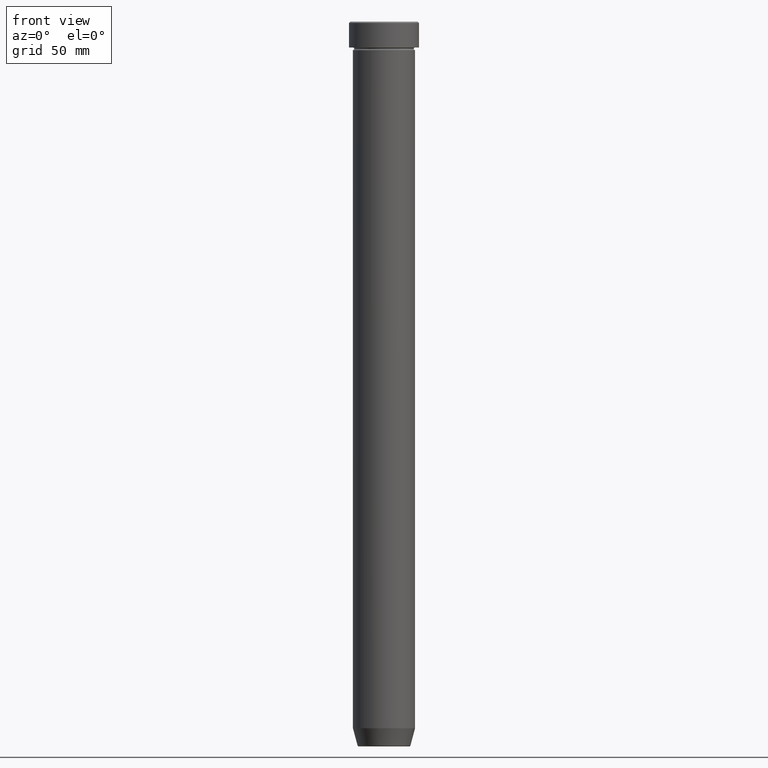
[diagram: clean part render]
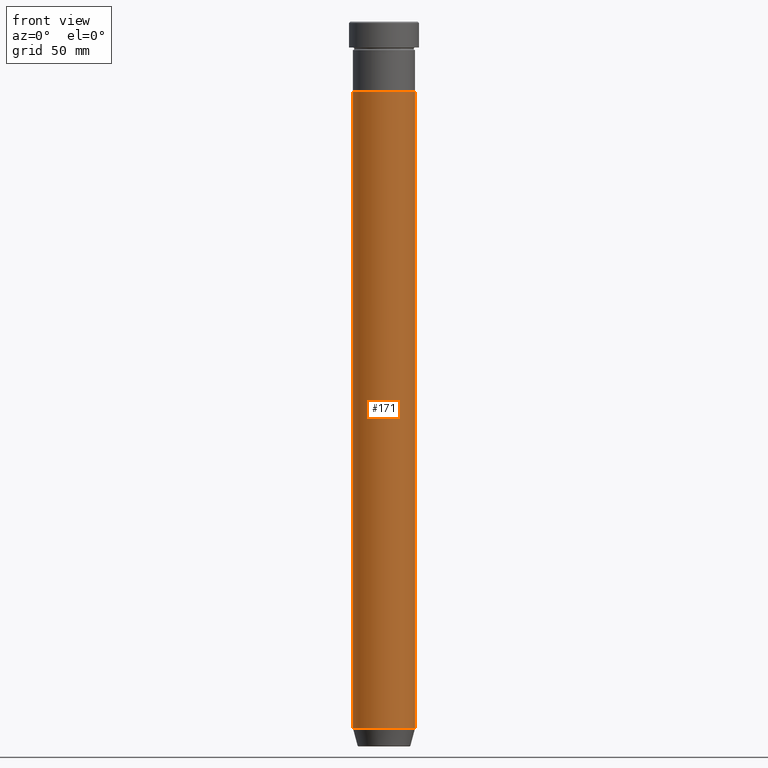
[diagram: same view with one face highlighted and labeled with its STEP entity id]
A machine part, front view. The second image highlights one B-rep face of the part: STEP entity #171.
In plain terms, the highlighted cylindrical surface (edge-blend (fillet) strip) has radius 12 mm, axis along (-0, -0, 1).
Its self-contained STEP definition (entity closure, byte-faithful):
#13 = VERTEX_POINT ( 'NONE', #552 ) ;
#24 = CARTESIAN_POINT ( 'NONE',  ( -12.00000000000000000, 1.469576158976823947E-15, -273.0000000000000000 ) ) ;
#63 = EDGE_LOOP ( 'NONE', ( #169, #351, #156, #326 ) ) ;
#90 = CARTESIAN_POINT ( 'NONE',  ( -12.00000000000000000, 1.469576158976823947E-15, 0.000000000000000000 ) ) ;
#92 = VECTOR ( 'NONE', #179, 1000.000000000000000 ) ;
#94 = CARTESIAN_POINT ( 'NONE',  ( 12.00000000000000000, 0.000000000000000000, 0.000000000000000000 ) ) ;
#96 = EDGE_CURVE ( 'NONE', #587, #419, #152, .T. ) ;
#134 = LINE ( 'NONE', #94, #92 ) ;
#152 = CIRCLE ( 'NONE', #550, 12.00000000000000000 ) ;
#156 = ORIENTED_EDGE ( 'NONE', *, *, #401, .T. ) ;
#164 = DIRECTION ( 'NONE',  ( 1.000000000000000000, 0.000000000000000000, 0.000000000000000000 ) ) ;
#169 = ORIENTED_EDGE ( 'NONE', *, *, #411, .F. ) ;
#171 = ADVANCED_FACE ( 'NONE', ( #287 ), #248, .T. ) ;
#176 = VERTEX_POINT ( 'NONE', #513 ) ;
#179 = DIRECTION ( 'NONE',  ( -0.000000000000000000, -0.000000000000000000, 1.000000000000000000 ) ) ;
#205 = CARTESIAN_POINT ( 'NONE',  ( 0.000000000000000000, 0.000000000000000000, -27.00000000000000000 ) ) ;
#212 = CIRCLE ( 'NONE', #477, 12.00000000000000000 ) ;
#217 = DIRECTION ( 'NONE',  ( -0.000000000000000000, -0.000000000000000000, 1.000000000000000000 ) ) ;
#237 = CARTESIAN_POINT ( 'NONE',  ( 0.000000000000000000, 0.000000000000000000, 0.000000000000000000 ) ) ;
#246 = VECTOR ( 'NONE', #217, 1000.000000000000000 ) ;
#248 = CYLINDRICAL_SURFACE ( 'NONE', #454, 12.00000000000000000 ) ;
#252 = DIRECTION ( 'NONE',  ( 1.000000000000000000, 0.000000000000000000, 0.000000000000000000 ) ) ;
#287 = FACE_OUTER_BOUND ( 'NONE', #63, .T. ) ;
#295 = DIRECTION ( 'NONE',  ( -0.000000000000000000, -0.000000000000000000, 1.000000000000000000 ) ) ;
#316 = LINE ( 'NONE', #90, #246 ) ;
#326 = ORIENTED_EDGE ( 'NONE', *, *, #599, .F. ) ;
#351 = ORIENTED_EDGE ( 'NONE', *, *, #96, .T. ) ;
#401 = EDGE_CURVE ( 'NONE', #419, #176, #134, .T. ) ;
#411 = EDGE_CURVE ( 'NONE', #587, #13, #316, .T. ) ;
#419 = VERTEX_POINT ( 'NONE', #497 ) ;
#429 = DIRECTION ( 'NONE',  ( 1.000000000000000000, 0.000000000000000000, 0.000000000000000000 ) ) ;
#454 = AXIS2_PLACEMENT_3D ( 'NONE', #237, #295, #429 ) ;
#477 = AXIS2_PLACEMENT_3D ( 'NONE', #205, #580, #164 ) ;
#497 = CARTESIAN_POINT ( 'NONE',  ( 12.00000000000000000, 0.000000000000000000, -273.0000000000000000 ) ) ;
#513 = CARTESIAN_POINT ( 'NONE',  ( 12.00000000000000000, 0.000000000000000000, -27.00000000000000000 ) ) ;
#532 = DIRECTION ( 'NONE',  ( -0.000000000000000000, -0.000000000000000000, 1.000000000000000000 ) ) ;
#550 = AXIS2_PLACEMENT_3D ( 'NONE', #574, #532, #252 ) ;
#552 = CARTESIAN_POINT ( 'NONE',  ( -12.00000000000000000, 1.469576158976823947E-15, -27.00000000000000000 ) ) ;
#574 = CARTESIAN_POINT ( 'NONE',  ( 0.000000000000000000, 0.000000000000000000, -273.0000000000000000 ) ) ;
#580 = DIRECTION ( 'NONE',  ( -0.000000000000000000, -0.000000000000000000, 1.000000000000000000 ) ) ;
#587 = VERTEX_POINT ( 'NONE', #24 ) ;
#599 = EDGE_CURVE ( 'NONE', #13, #176, #212, .T. ) ;